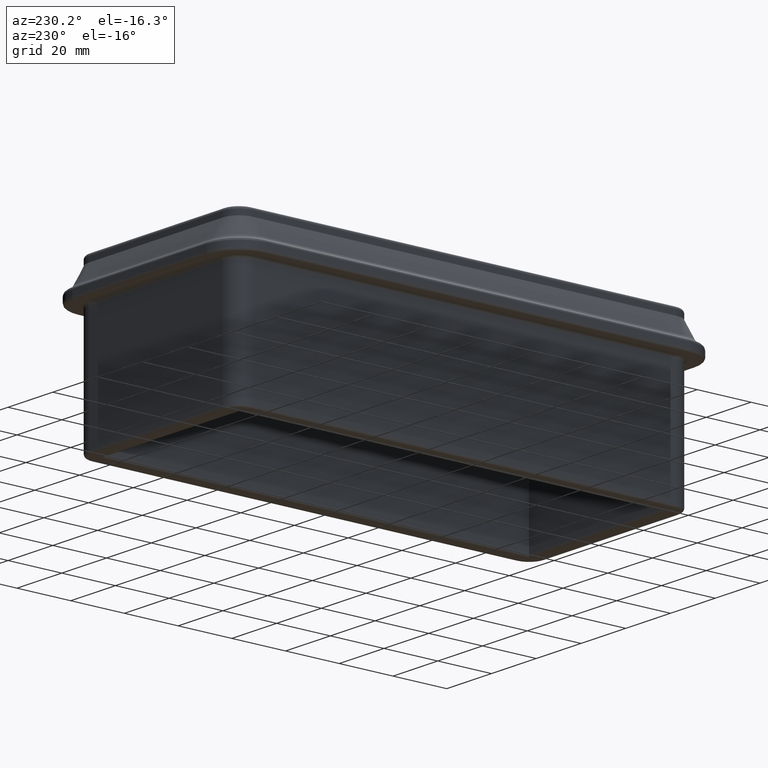
[diagram: clean part render]
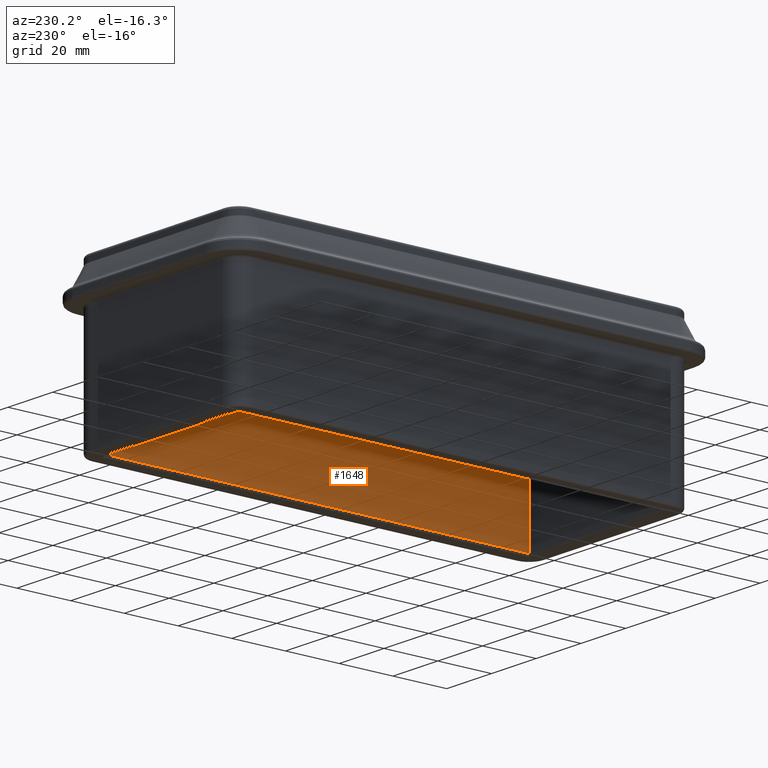
[diagram: same view with one face highlighted and labeled with its STEP entity id]
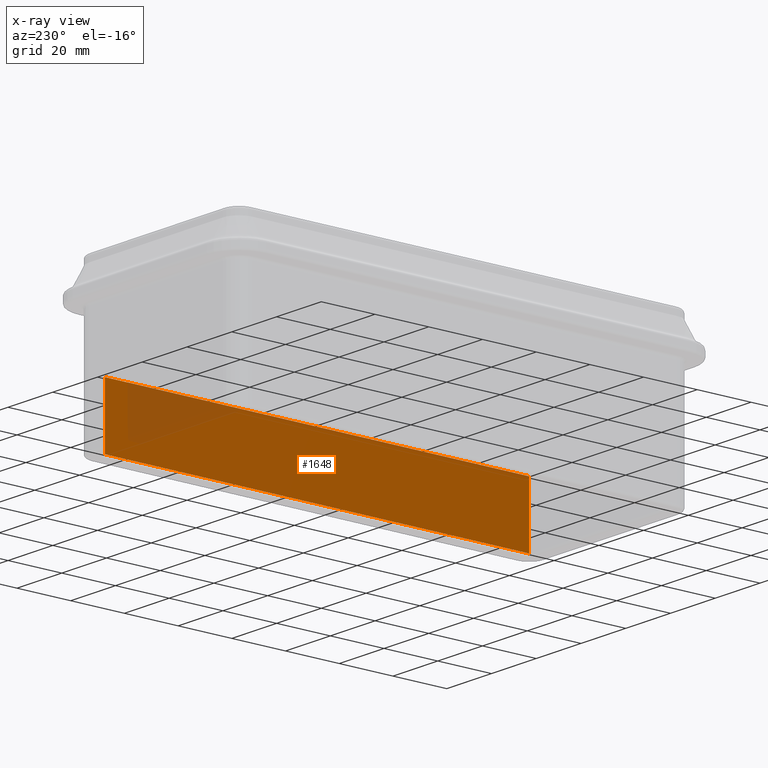
[diagram: x-ray of the same camera — body ghosted, the highlighted face saturated]
A machine part, auxiliary view. The second image highlights one B-rep face of the part: STEP entity #1648.
The next image is the same camera in x-ray: the body ghosted, the highlighted face saturated — about 14% of this face is hidden behind the body in this view.
In plain terms, the highlighted planar face has unit normal (-1, -0, -0).
Its self-contained STEP definition (entity closure, byte-faithful):
#43=PLANE('',#1866);
#161=FACE_OUTER_BOUND('',#272,.T.);
#272=EDGE_LOOP('',(#1356,#1357,#1358,#1359));
#391=LINE('',#2835,#519);
#397=LINE('',#2849,#525);
#400=LINE('',#2855,#528);
#401=LINE('',#2856,#529);
#519=VECTOR('',#2319,10.);
#525=VECTOR('',#2335,10.);
#528=VECTOR('',#2340,10.);
#529=VECTOR('',#2341,10.);
#771=VERTEX_POINT('',#2833);
#772=VERTEX_POINT('',#2834);
#775=VERTEX_POINT('',#2848);
#777=VERTEX_POINT('',#2854);
#974=EDGE_CURVE('',#771,#772,#391,.T.);
#982=EDGE_CURVE('',#772,#775,#397,.T.);
#985=EDGE_CURVE('',#771,#777,#400,.T.);
#986=EDGE_CURVE('',#777,#775,#401,.T.);
#1356=ORIENTED_EDGE('',*,*,#974,.F.);
#1357=ORIENTED_EDGE('',*,*,#985,.T.);
#1358=ORIENTED_EDGE('',*,*,#986,.T.);
#1359=ORIENTED_EDGE('',*,*,#982,.F.);
#1648=ADVANCED_FACE('',(#161),#43,.T.);
#1866=AXIS2_PLACEMENT_3D('',#2853,#2338,#2339);
#2319=DIRECTION('',(-1.6864147209496E-16,1.,0.));
#2335=DIRECTION('',(-4.44089209850063E-16,-4.42223702147498E-32,1.));
#2338=DIRECTION('center_axis',(-1.,-1.6864147209496E-16,-4.44089209850063E-16));
#2339=DIRECTION('ref_axis',(-4.44089209850063E-16,-4.42223702147498E-32,
1.));
#2340=DIRECTION('',(-3.67237831141568E-31,4.44089209850063E-16,1.));
#2341=DIRECTION('',(-1.55793749041947E-16,1.,0.));
#2833=CARTESIAN_POINT('',(30.,-79.,-29.));
#2834=CARTESIAN_POINT('',(30.,79.,-29.));
#2835=CARTESIAN_POINT('',(30.,-79.,-29.));
#2848=CARTESIAN_POINT('',(29.9999999999999,79.,-6.00000000000001));
#2849=CARTESIAN_POINT('',(29.9999999999999,79.,30.));
#2853=CARTESIAN_POINT('Origin',(30.,-79.,-30.));
#2854=CARTESIAN_POINT('',(30.,-78.9999999999999,-6.00000000000001));
#2855=CARTESIAN_POINT('',(30.,-78.9999999999999,30.));
#2856=CARTESIAN_POINT('',(30.,-79.,-6.00000000000001));